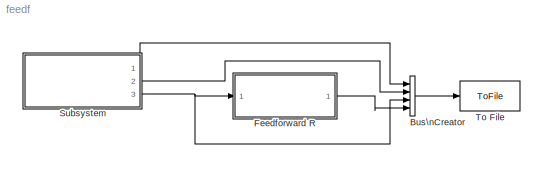
MODEL feedf
KIND model
BLOCK [BusCreator] Bus\nCreator
  DisplayOption = bar
  Ports = [4, 1]
  SID = 22
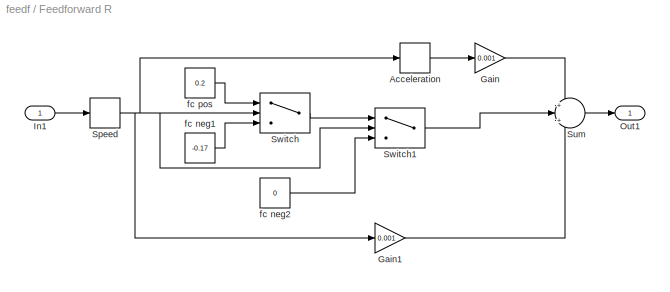
BLOCK [SubSystem] Feedforward R
  FunctionWithSeparateData = off
  MaskHideContents = off
  MinAlgLoopOccurrences = off
  Opaque = off
  Ports = [1, 1]
  PropExecContextOutsideSubsystem = off
  RTWSystemCode = Auto
  RequestExecContextInheritance = off
  SID = 8
BLOCK [Derivative] Feedforward R/Acceleration
  SID = 10
BLOCK [Gain] Feedforward R/Gain
  Gain = 0.001
  OutDataTypeStr = Inherit: Inherit via internal rule
  ParamDataTypeStr = Inherit: Inherit via internal rule
  SID = 12
  SaturateOnIntegerOverflow = off
BLOCK [Gain] Feedforward R/Gain1
  Gain = 0.001
  OutDataTypeStr = Inherit: Inherit via internal rule
  ParamDataTypeStr = Inherit: Inherit via internal rule
  SID = 13
  SaturateOnIntegerOverflow = off
BLOCK [Inport] Feedforward R/In1
  IconDisplay = Port number
  SID = 9
BLOCK [Outport] Feedforward R/Out1
  IconDisplay = Port number
  SID = 20
BLOCK [Derivative] Feedforward R/Speed
  SID = 14
BLOCK [Sum] Feedforward R/Sum
  IconShape = round
  InputSameDT = off
  Inputs = +|+|+
  OutDataTypeStr = Inherit: Inherit via internal rule
  Ports = [3, 1]
  SID = 15
  SaturateOnIntegerOverflow = off
BLOCK [Switch] Feedforward R/Switch
  Criteria = u2 > Threshold
  InputSameDT = off
  SID = 16
  SaturateOnIntegerOverflow = off
BLOCK [Switch] Feedforward R/Switch1
  Criteria = u2 ~= 0
  InputSameDT = off
  SID = 23
  SaturateOnIntegerOverflow = off
BLOCK [Constant] Feedforward R/fc neg1
  SID = 18
  Value = -0.17
BLOCK [Constant] Feedforward R/fc neg2
  SID = 24
  Value = 0
BLOCK [Constant] Feedforward R/fc pos
  SID = 19
  Value = 0.2
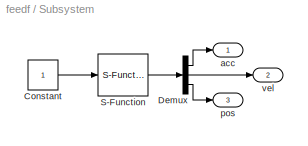
BLOCK [SubSystem] Subsystem
  FunctionWithSeparateData = off
  MaskDisplay = disp('Ref3');\n
  MaskHideContents = off
  MaskIconFrame = off
  MaskIconOpaque = off
  MaskIconRotate = none
  MaskIconUnits = autoscale
  MaskPortRotate = default
  MaskType = Ref3
  MinAlgLoopOccurrences = off
  Opaque = off
  OpenFcn = r3g_main
  Ports = [0, 3]
  PropExecContextOutsideSubsystem = off
  RTWSystemCode = Auto
  RequestExecContextInheritance = off
  SID = 1
BLOCK [Constant] Subsystem/Constant
  SID = 2
BLOCK [Demux] Subsystem/Demux
  Outputs = 3
  Ports = [1, 3]
  SID = 3
BLOCK [S-Function] Subsystem/S-Function
  EnableBusSupport = off
  FunctionName = ref3
  OpenFcn = global ref_part; r3g_main
  Parameters = ref_part
  Ports = [1, 1]
  SID = 4
BLOCK [Outport] Subsystem/acc
  IconDisplay = Port number
  SID = 5
BLOCK [Outport] Subsystem/pos
  IconDisplay = Port number
  Port = 3
  SID = 7
BLOCK [Outport] Subsystem/vel
  IconDisplay = Port number
  Port = 2
  SID = 6
BLOCK [ToFile] To File
  Filename = outfeed.mat
  MatrixName = out
  SID = 21
LINE Bus\nCreator:1 -> To File:1
LINE Feedforward R/Acceleration:1 -> Feedforward R/Gain:1
LINE Feedforward R/Gain1:1 -> Feedforward R/Sum:3
LINE Feedforward R/Gain:1 -> Feedforward R/Sum:1
LINE Feedforward R/In1:1 -> Feedforward R/Speed:1
NET Feedforward R/Speed:1 -> Feedforward R/Acceleration:1, Feedforward R/Gain1:1, Feedforward R/Switch1:2, Feedforward R/Switch:2
LINE Feedforward R/Sum:1 -> Feedforward R/Out1:1
LINE Feedforward R/Switch1:1 -> Feedforward R/Sum:2
LINE Feedforward R/Switch:1 -> Feedforward R/Switch1:1
LINE Feedforward R/fc neg1:1 -> Feedforward R/Switch:3
LINE Feedforward R/fc neg2:1 -> Feedforward R/Switch1:3
LINE Feedforward R/fc pos:1 -> Feedforward R/Switch:1
LINE Feedforward R:1 -> Bus\nCreator:4
LINE Subsystem/Constant:1 -> Subsystem/S-Function:1
LINE Subsystem/Demux:1 -> Subsystem/acc:1
LINE Subsystem/Demux:2 -> Subsystem/vel:1
LINE Subsystem/Demux:3 -> Subsystem/pos:1
LINE Subsystem/S-Function:1 -> Subsystem/Demux:1
LINE Subsystem:1 -> Bus\nCreator:1
LINE Subsystem:2 -> Bus\nCreator:2
NET Subsystem:3 -> Bus\nCreator:3, Feedforward R:1
note: NET lines group one-source signal fan-out (src -> all destinations, sorted); 1:1 wires keep LINE
